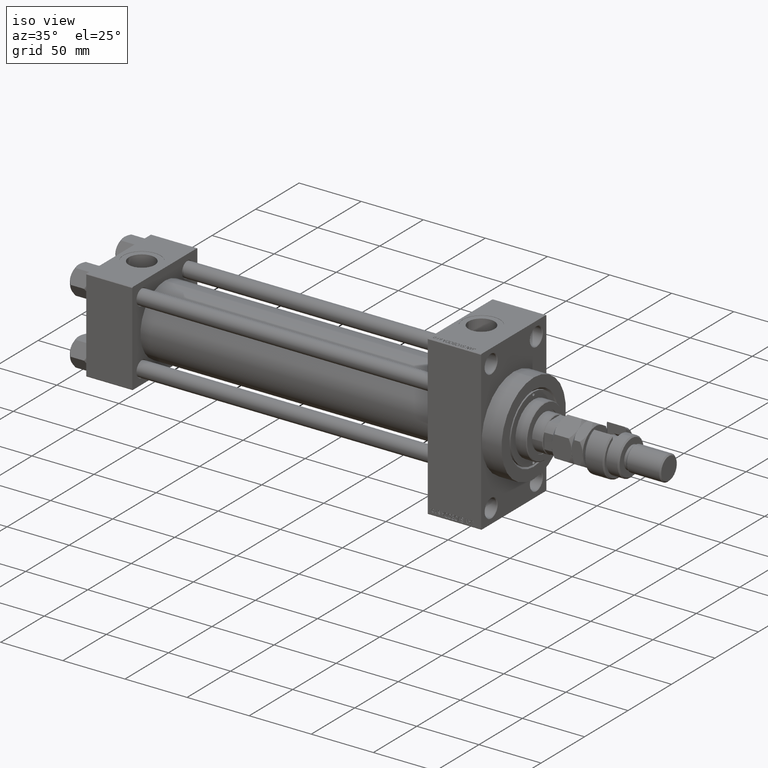
[diagram: clean part render]
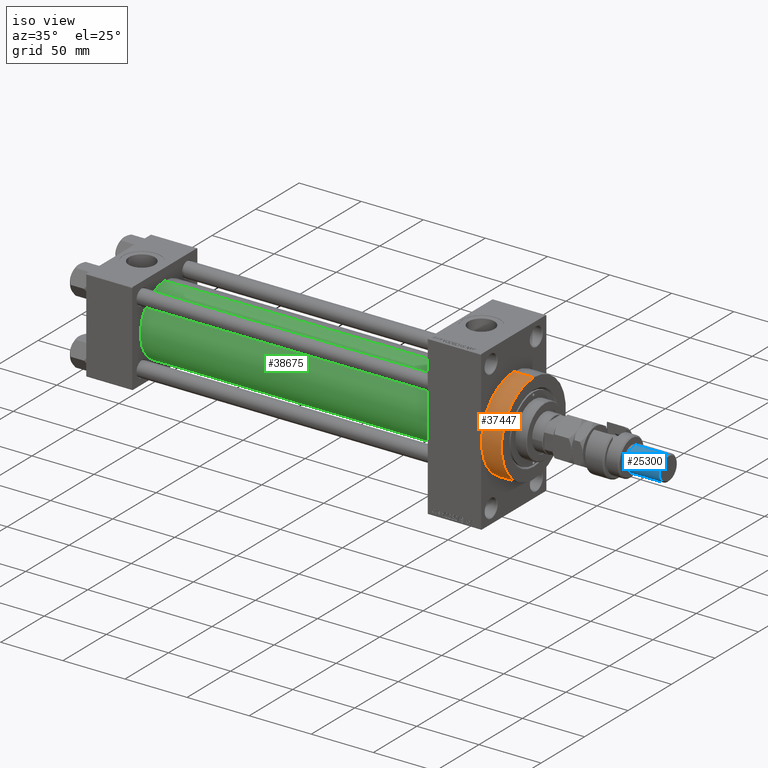
[diagram: same view with three faces highlighted in distinct colors, each labeled with its STEP entity id]
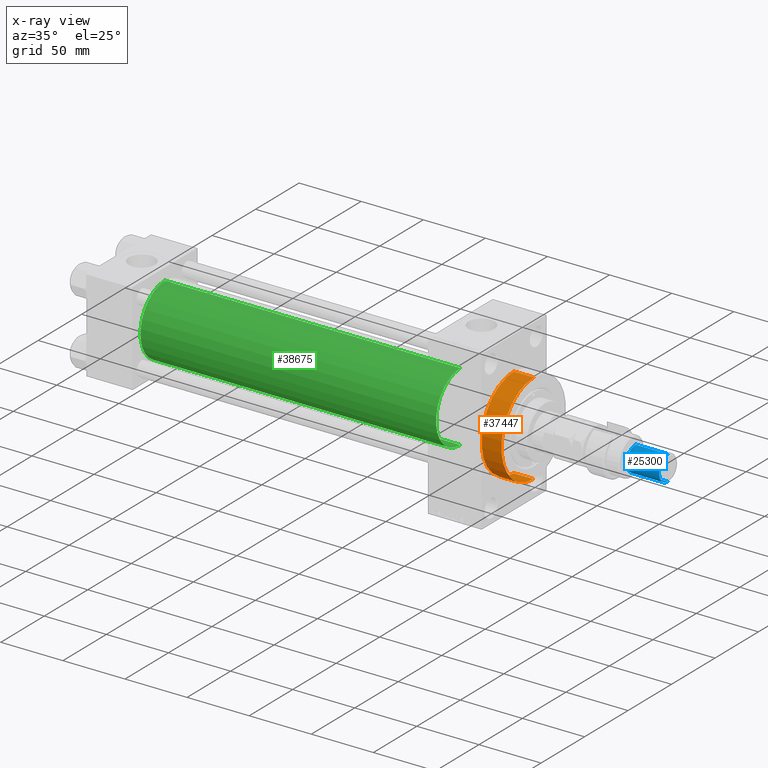
[diagram: x-ray of the same camera — body ghosted, the three highlighted faces saturated]
A machine part, iso view with three faces highlighted in distinct colors.
The next image is the same camera in x-ray (body ghosted, the three faces saturated) — at least one of them is partly hidden behind the body in this view.
Their STEP definitions:

[orange] entity #37447 — the highlighted cylindrical surface (partial cylindrical patch) has radius 37 mm, axis along (-1, -0, -0).
#34 = AXIS2_PLACEMENT_3D ( 'NONE', #15236, #11170, #26182 ) ;
#627 = CIRCLE ( 'NONE', #18468, 37.00000000000000000 ) ;
#835 = CARTESIAN_POINT ( 'NONE',  ( 317.9999999999999432, 4.531193156845206793E-15, -37.00000000000000000 ) ) ;
#5509 = DIRECTION ( 'NONE',  ( 0.000000000000000000, 0.000000000000000000, -1.000000000000000000 ) ) ;
#6004 = EDGE_LOOP ( 'NONE', ( #49675, #47448, #27365, #22735 ) ) ;
#8230 = VECTOR ( 'NONE', #21088, 1000.000000000000000 ) ;
#8875 = AXIS2_PLACEMENT_3D ( 'NONE', #37156, #33101, #36406 ) ;
#9108 = EDGE_CURVE ( 'NONE', #48089, #47385, #627, .T. ) ;
#9399 = CARTESIAN_POINT ( 'NONE',  ( 333.9999999999999432, 4.531193156845206793E-15, -37.00000000000000000 ) ) ;
#11170 = DIRECTION ( 'NONE',  ( 1.000000000000000000, 0.000000000000000000, 0.000000000000000000 ) ) ;
#12204 = LINE ( 'NONE', #9399, #8230 ) ;
#13042 = CARTESIAN_POINT ( 'NONE',  ( 333.9999999999999432, 0.000000000000000000, 37.00000000000000000 ) ) ;
#14907 = EDGE_CURVE ( 'NONE', #24367, #44867, #25212, .T. ) ;
#15236 = CARTESIAN_POINT ( 'NONE',  ( 333.9999999999999432, 0.000000000000000000, 0.000000000000000000 ) ) ;
#16460 = DIRECTION ( 'NONE',  ( 1.000000000000000000, 0.000000000000000000, 0.000000000000000000 ) ) ;
#17372 = EDGE_CURVE ( 'NONE', #44867, #47385, #12204, .T. ) ;
#17533 = DIRECTION ( 'NONE',  ( -1.000000000000000000, -0.000000000000000000, -0.000000000000000000 ) ) ;
#18468 = AXIS2_PLACEMENT_3D ( 'NONE', #28914, #16460, #5509 ) ;
#21088 = DIRECTION ( 'NONE',  ( -1.000000000000000000, -0.000000000000000000, -0.000000000000000000 ) ) ;
#22735 = ORIENTED_EDGE ( 'NONE', *, *, #9108, .T. ) ;
#24367 = VERTEX_POINT ( 'NONE', #13042 ) ;
#24925 = CARTESIAN_POINT ( 'NONE',  ( 333.9999999999999432, 4.531193156845206793E-15, -37.00000000000000000 ) ) ;
#25212 = CIRCLE ( 'NONE', #34, 37.00000000000000000 ) ;
#25505 = VECTOR ( 'NONE', #17533, 1000.000000000000000 ) ;
#26182 = DIRECTION ( 'NONE',  ( 0.000000000000000000, 0.000000000000000000, -1.000000000000000000 ) ) ;
#26745 = EDGE_CURVE ( 'NONE', #24367, #48089, #44484, .T. ) ;
#27365 = ORIENTED_EDGE ( 'NONE', *, *, #26745, .T. ) ;
#28485 = CARTESIAN_POINT ( 'NONE',  ( 333.9999999999999432, 0.000000000000000000, 37.00000000000000000 ) ) ;
#28914 = CARTESIAN_POINT ( 'NONE',  ( 317.9999999999999432, 0.000000000000000000, 0.000000000000000000 ) ) ;
#33101 = DIRECTION ( 'NONE',  ( -1.000000000000000000, -0.000000000000000000, -0.000000000000000000 ) ) ;
#36406 = DIRECTION ( 'NONE',  ( 0.000000000000000000, 0.000000000000000000, 1.000000000000000000 ) ) ;
#36918 = CYLINDRICAL_SURFACE ( 'NONE', #8875, 37.00000000000000000 ) ;
#37156 = CARTESIAN_POINT ( 'NONE',  ( 333.9999999999999432, 0.000000000000000000, 0.000000000000000000 ) ) ;
#37402 = FACE_OUTER_BOUND ( 'NONE', #6004, .T. ) ;
#37447 = ADVANCED_FACE ( 'NONE', ( #37402 ), #36918, .T. ) ;
#41534 = CARTESIAN_POINT ( 'NONE',  ( 317.9999999999999432, 0.000000000000000000, 37.00000000000000000 ) ) ;
#44484 = LINE ( 'NONE', #28485, #25505 ) ;
#44867 = VERTEX_POINT ( 'NONE', #24925 ) ;
#47385 = VERTEX_POINT ( 'NONE', #835 ) ;
#47448 = ORIENTED_EDGE ( 'NONE', *, *, #14907, .F. ) ;
#48089 = VERTEX_POINT ( 'NONE', #41534 ) ;
#49675 = ORIENTED_EDGE ( 'NONE', *, *, #17372, .F. ) ;

[blue] entity #25300 — the highlighted cylindrical surface (edge-blend (fillet) strip) has radius 10 mm, axis along (-1, -0, 0).
#477 = AXIS2_PLACEMENT_3D ( 'NONE', #43156, #42902, #12384 ) ;
#883 = CARTESIAN_POINT ( 'NONE',  ( 10.00000000000000000, 1.224646799147353256E-15, 29.00000000000000711 ) ) ;
#2135 = DIRECTION ( 'NONE',  ( -0.000000000000000000, -0.000000000000000000, -1.000000000000000000 ) ) ;
#2686 = VECTOR ( 'NONE', #32328, 1000.000000000000000 ) ;
#5257 = EDGE_CURVE ( 'NONE', #5292, #8658, #13742, .T. ) ;
#5292 = VERTEX_POINT ( 'NONE', #14239 ) ;
#7617 = EDGE_CURVE ( 'NONE', #5292, #44448, #46061, .T. ) ;
#8311 = DIRECTION ( 'NONE',  ( 1.000000000000000000, 0.000000000000000000, 0.000000000000000000 ) ) ;
#8658 = VERTEX_POINT ( 'NONE', #883 ) ;
#9387 = CIRCLE ( 'NONE', #477, 10.00000000000000000 ) ;
#9751 = CARTESIAN_POINT ( 'NONE',  ( 0.000000000000000000, 0.000000000000000000, 56.00000000000000711 ) ) ;
#10528 = CARTESIAN_POINT ( 'NONE',  ( -10.00000000000000000, 0.000000000000000000, 29.00000000000000711 ) ) ;
#11464 = ORIENTED_EDGE ( 'NONE', *, *, #30877, .T. ) ;
#11973 = AXIS2_PLACEMENT_3D ( 'NONE', #26120, #42652, #8311 ) ;
#12384 = DIRECTION ( 'NONE',  ( 1.000000000000000000, 0.000000000000000000, 0.000000000000000000 ) ) ;
#13424 = ORIENTED_EDGE ( 'NONE', *, *, #7617, .T. ) ;
#13742 = LINE ( 'NONE', #20881, #2686 ) ;
#14239 = CARTESIAN_POINT ( 'NONE',  ( 10.00000000000000000, 1.224646799147353256E-15, 54.99999999999998579 ) ) ;
#14650 = VERTEX_POINT ( 'NONE', #10528 ) ;
#15845 = CARTESIAN_POINT ( 'NONE',  ( -10.00000000000000000, 0.000000000000000000, 54.99999999999998579 ) ) ;
#17632 = DIRECTION ( 'NONE',  ( -1.000000000000000000, 0.000000000000000000, 0.000000000000000000 ) ) ;
#20117 = CARTESIAN_POINT ( 'NONE',  ( -10.00000000000000000, 0.000000000000000000, 56.00000000000000711 ) ) ;
#20881 = CARTESIAN_POINT ( 'NONE',  ( 10.00000000000000000, 1.224646799147353256E-15, 56.00000000000000711 ) ) ;
#22301 = EDGE_LOOP ( 'NONE', ( #41512, #13424, #47978, #11464 ) ) ;
#22780 = EDGE_CURVE ( 'NONE', #44448, #14650, #34864, .T. ) ;
#25300 = ADVANCED_FACE ( 'NONE', ( #44588 ), #29339, .T. ) ;
#26120 = CARTESIAN_POINT ( 'NONE',  ( 0.000000000000000000, 0.000000000000000000, 54.99999999999998579 ) ) ;
#27742 = DIRECTION ( 'NONE',  ( -0.000000000000000000, -0.000000000000000000, -1.000000000000000000 ) ) ;
#29339 = CYLINDRICAL_SURFACE ( 'NONE', #45764, 10.00000000000000000 ) ;
#30877 = EDGE_CURVE ( 'NONE', #14650, #8658, #9387, .T. ) ;
#31036 = VECTOR ( 'NONE', #27742, 1000.000000000000000 ) ;
#32328 = DIRECTION ( 'NONE',  ( -0.000000000000000000, -0.000000000000000000, -1.000000000000000000 ) ) ;
#34864 = LINE ( 'NONE', #20117, #31036 ) ;
#41512 = ORIENTED_EDGE ( 'NONE', *, *, #5257, .F. ) ;
#42652 = DIRECTION ( 'NONE',  ( 0.000000000000000000, 0.000000000000000000, -1.000000000000000000 ) ) ;
#42902 = DIRECTION ( 'NONE',  ( -0.000000000000000000, -0.000000000000000000, 1.000000000000000000 ) ) ;
#43156 = CARTESIAN_POINT ( 'NONE',  ( 0.000000000000000000, 0.000000000000000000, 29.00000000000000711 ) ) ;
#44448 = VERTEX_POINT ( 'NONE', #15845 ) ;
#44588 = FACE_OUTER_BOUND ( 'NONE', #22301, .T. ) ;
#45764 = AXIS2_PLACEMENT_3D ( 'NONE', #9751, #2135, #17632 ) ;
#46061 = CIRCLE ( 'NONE', #11973, 10.00000000000000000 ) ;
#47978 = ORIENTED_EDGE ( 'NONE', *, *, #22780, .T. ) ;

[green] entity #38675 — the highlighted cylindrical surface (partial cylindrical patch) has radius 28 mm, axis along (-1, -0, -0).
#312 = CIRCLE ( 'NONE', #15755, 28.00000000000000000 ) ;
#1836 = VECTOR ( 'NONE', #16670, 1000.000000000000000 ) ;
#4724 = LINE ( 'NONE', #23808, #1836 ) ;
#4971 = ORIENTED_EDGE ( 'NONE', *, *, #33099, .T. ) ;
#8673 = CYLINDRICAL_SURFACE ( 'NONE', #23533, 28.00000000000000000 ) ;
#8917 = CARTESIAN_POINT ( 'NONE',  ( 274.9999999999999432, -2.602085213965210642E-15, 0.000000000000000000 ) ) ;
#8921 = VERTEX_POINT ( 'NONE', #43290 ) ;
#15506 = DIRECTION ( 'NONE',  ( 1.000000000000000000, 0.000000000000000000, 0.000000000000000000 ) ) ;
#15755 = AXIS2_PLACEMENT_3D ( 'NONE', #24399, #15506, #46542 ) ;
#16295 = DIRECTION ( 'NONE',  ( 0.000000000000000000, 0.000000000000000000, 1.000000000000000000 ) ) ;
#16670 = DIRECTION ( 'NONE',  ( -1.000000000000000000, -0.000000000000000000, -0.000000000000000000 ) ) ;
#16916 = CARTESIAN_POINT ( 'NONE',  ( 274.9999999999999432, 8.269258236473784371E-16, -28.00000000000000000 ) ) ;
#17970 = DIRECTION ( 'NONE',  ( 0.000000000000000000, 0.000000000000000000, 1.000000000000000000 ) ) ;
#19624 = DIRECTION ( 'NONE',  ( -1.000000000000000000, -0.000000000000000000, -0.000000000000000000 ) ) ;
#20748 = VERTEX_POINT ( 'NONE', #21805 ) ;
#21418 = VERTEX_POINT ( 'NONE', #35586 ) ;
#21805 = CARTESIAN_POINT ( 'NONE',  ( 37.00000000000000711, 8.269258236473784371E-16, -28.00000000000000000 ) ) ;
#22844 = CARTESIAN_POINT ( 'NONE',  ( 274.9999999999999432, -2.602085213965210642E-15, 28.00000000000000000 ) ) ;
#23300 = EDGE_CURVE ( 'NONE', #23385, #20748, #4724, .T. ) ;
#23385 = VERTEX_POINT ( 'NONE', #16916 ) ;
#23533 = AXIS2_PLACEMENT_3D ( 'NONE', #8917, #19624, #16295 ) ;
#23808 = CARTESIAN_POINT ( 'NONE',  ( 274.9999999999999432, 8.269258236473784371E-16, -28.00000000000000000 ) ) ;
#24399 = CARTESIAN_POINT ( 'NONE',  ( 274.9999999999999432, -2.602085213965210642E-15, 0.000000000000000000 ) ) ;
#25946 = CIRCLE ( 'NONE', #40581, 28.00000000000000000 ) ;
#27172 = LINE ( 'NONE', #22844, #29849 ) ;
#29849 = VECTOR ( 'NONE', #38613, 1000.000000000000000 ) ;
#31328 = FACE_OUTER_BOUND ( 'NONE', #33557, .T. ) ;
#33099 = EDGE_CURVE ( 'NONE', #21418, #8921, #27172, .T. ) ;
#33557 = EDGE_LOOP ( 'NONE', ( #47390, #42400, #4971, #38763 ) ) ;
#35586 = CARTESIAN_POINT ( 'NONE',  ( 274.9999999999999432, -2.602085213965210642E-15, 28.00000000000000000 ) ) ;
#38206 = EDGE_CURVE ( 'NONE', #8921, #20748, #25946, .T. ) ;
#38613 = DIRECTION ( 'NONE',  ( -1.000000000000000000, -0.000000000000000000, -0.000000000000000000 ) ) ;
#38675 = ADVANCED_FACE ( 'NONE', ( #31328 ), #8673, .T. ) ;
#38763 = ORIENTED_EDGE ( 'NONE', *, *, #38206, .T. ) ;
#40581 = AXIS2_PLACEMENT_3D ( 'NONE', #46183, #42114, #17970 ) ;
#42114 = DIRECTION ( 'NONE',  ( 1.000000000000000000, -0.000000000000000000, 0.000000000000000000 ) ) ;
#42400 = ORIENTED_EDGE ( 'NONE', *, *, #50010, .F. ) ;
#43290 = CARTESIAN_POINT ( 'NONE',  ( 37.00000000000000711, -2.602085213965210642E-15, 28.00000000000000000 ) ) ;
#46183 = CARTESIAN_POINT ( 'NONE',  ( 37.00000000000000711, -2.602085213965210642E-15, 0.000000000000000000 ) ) ;
#46542 = DIRECTION ( 'NONE',  ( 0.000000000000000000, 0.000000000000000000, -1.000000000000000000 ) ) ;
#47390 = ORIENTED_EDGE ( 'NONE', *, *, #23300, .F. ) ;
#50010 = EDGE_CURVE ( 'NONE', #21418, #23385, #312, .T. ) ;